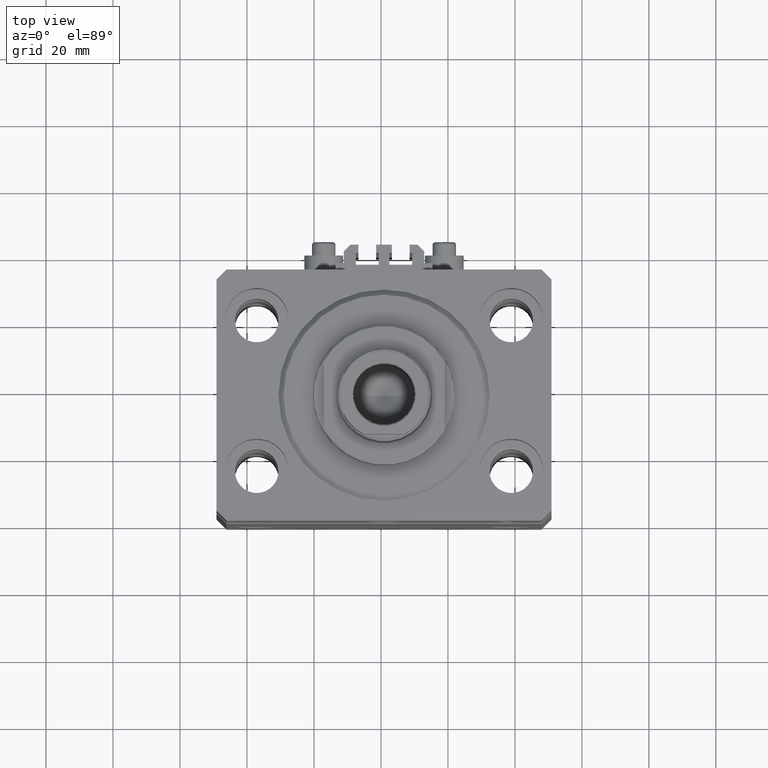
[diagram: clean part render]
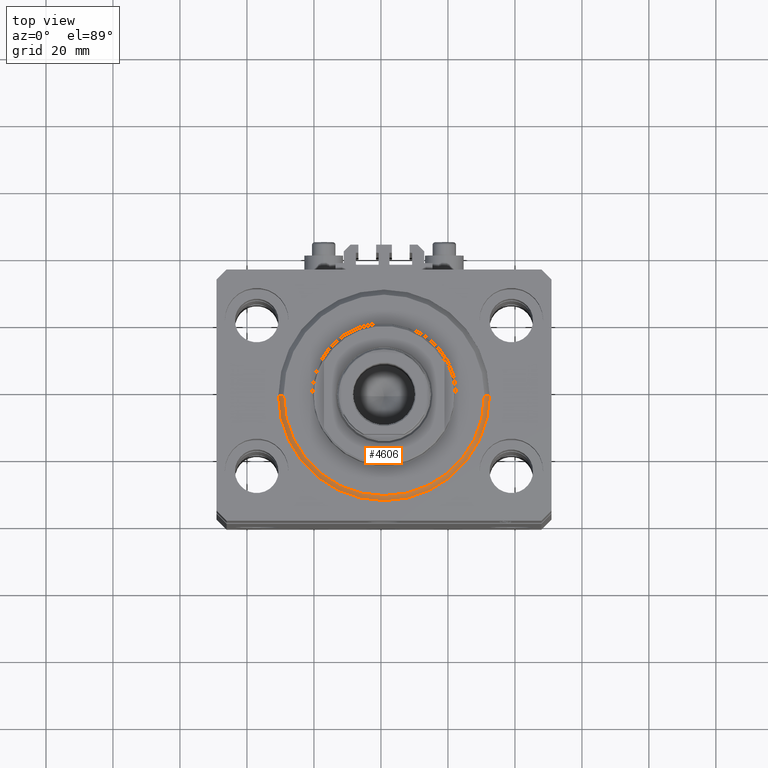
[diagram: same view with one face highlighted and labeled with its STEP entity id]
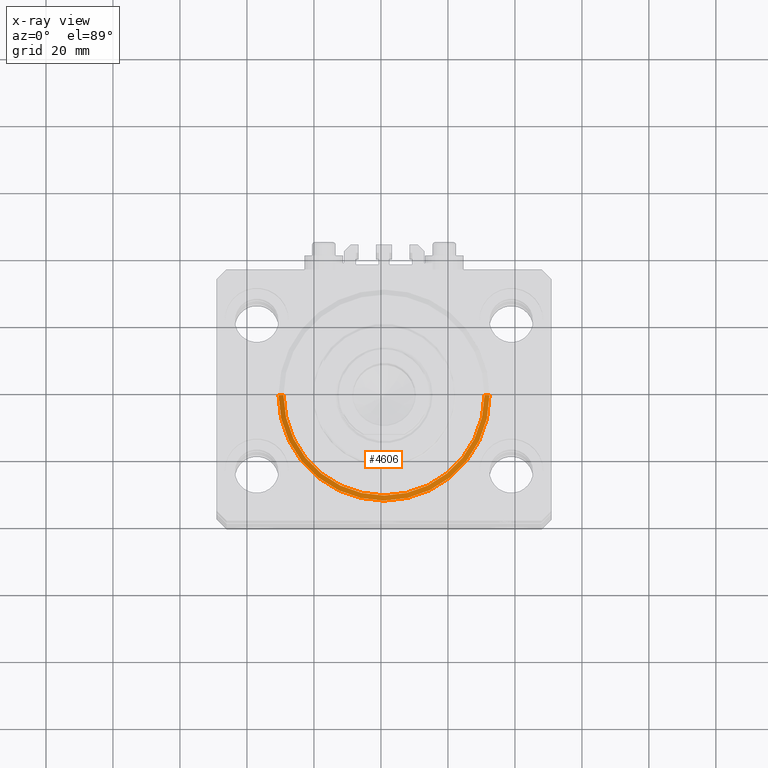
[diagram: x-ray of the same camera — body ghosted, the highlighted face saturated]
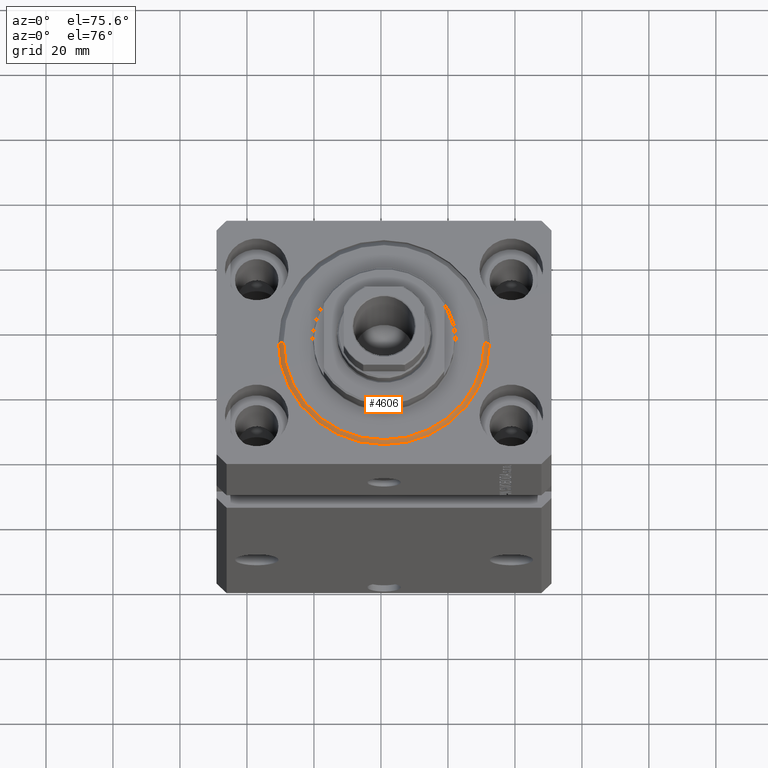
[diagram: same view with one face highlighted and labeled with its STEP entity id]
A machine part, top view. The second image highlights one B-rep face of the part: STEP entity #4606.
The next image is the same camera in x-ray: the body ghosted, the highlighted face saturated — about 0% of this face is hidden behind the body in this view.
A second angle (auxiliary view) of the same face is appended — the face is thin or edge-on in the first view.
In plain terms, the highlighted conical surface has half-angle 45 deg.
Its self-contained STEP definition (entity closure, byte-faithful):
#795 = CARTESIAN_POINT ( 'NONE',  ( -31.50000000000000000, 3.857637417314162689E-15, 1.500000000000001332 ) ) ;
#4195 = AXIS2_PLACEMENT_3D ( 'NONE', #5865, #20008, #27806 ) ;
#4606 = ADVANCED_FACE ( 'NONE', ( #46783 ), #25207, .T. ) ;
#5865 = CARTESIAN_POINT ( 'NONE',  ( 0.000000000000000000, 0.000000000000000000, 1.500000000000001332 ) ) ;
#5967 = VERTEX_POINT ( 'NONE', #22123 ) ;
#5998 = DIRECTION ( 'NONE',  ( 1.000000000000000000, 0.000000000000000000, 0.000000000000000000 ) ) ;
#7605 = DIRECTION ( 'NONE',  ( -0.7071067811865491270, 8.659560562354952580E-17, 0.7071067811865459074 ) ) ;
#8657 = AXIS2_PLACEMENT_3D ( 'NONE', #13309, #9657, #5998 ) ;
#9172 = LINE ( 'NONE', #24050, #14470 ) ;
#9657 = DIRECTION ( 'NONE',  ( -0.000000000000000000, -0.000000000000000000, 1.000000000000000000 ) ) ;
#10983 = VERTEX_POINT ( 'NONE', #23996 ) ;
#12424 = EDGE_CURVE ( 'NONE', #31742, #5967, #20569, .T. ) ;
#13150 = DIRECTION ( 'NONE',  ( 1.000000000000000000, 0.000000000000000000, 0.000000000000000000 ) ) ;
#13309 = CARTESIAN_POINT ( 'NONE',  ( 0.000000000000000000, 0.000000000000000000, 1.500000000000001332 ) ) ;
#14470 = VECTOR ( 'NONE', #35012, 1000.000000000000000 ) ;
#16136 = VERTEX_POINT ( 'NONE', #28205 ) ;
#16812 = CARTESIAN_POINT ( 'NONE',  ( 0.000000000000000000, 0.000000000000000000, 0.000000000000000000 ) ) ;
#19410 = EDGE_CURVE ( 'NONE', #5967, #16136, #26635, .T. ) ;
#19807 = AXIS2_PLACEMENT_3D ( 'NONE', #16812, #46524, #13150 ) ;
#19809 = EDGE_CURVE ( 'NONE', #31742, #10983, #9172, .T. ) ;
#20008 = DIRECTION ( 'NONE',  ( -0.000000000000000000, -0.000000000000000000, 1.000000000000000000 ) ) ;
#20569 = CIRCLE ( 'NONE', #19807, 29.99999999999999289 ) ;
#22123 = CARTESIAN_POINT ( 'NONE',  ( -29.99999999999999289, 3.765788907378110539E-15, 0.000000000000000000 ) ) ;
#23996 = CARTESIAN_POINT ( 'NONE',  ( 31.50000000000000000, 3.857637417314162689E-15, 1.500000000000001332 ) ) ;
#24050 = CARTESIAN_POINT ( 'NONE',  ( 31.50000000000000000, 0.000000000000000000, 1.500000000000001332 ) ) ;
#25207 = CONICAL_SURFACE ( 'NONE', #4195, 31.50000000000000000, 0.7853981633974506105 ) ;
#26495 = ORIENTED_EDGE ( 'NONE', *, *, #19410, .F. ) ;
#26635 = LINE ( 'NONE', #795, #44019 ) ;
#27806 = DIRECTION ( 'NONE',  ( 1.000000000000000000, 0.000000000000000000, 0.000000000000000000 ) ) ;
#28205 = CARTESIAN_POINT ( 'NONE',  ( -31.50000000000000000, 0.000000000000000000, 1.500000000000001332 ) ) ;
#31742 = VERTEX_POINT ( 'NONE', #36295 ) ;
#35012 = DIRECTION ( 'NONE',  ( 0.7071067811865491270, 0.000000000000000000, 0.7071067811865459074 ) ) ;
#35138 = CIRCLE ( 'NONE', #8657, 31.50000000000000000 ) ;
#35402 = ORIENTED_EDGE ( 'NONE', *, *, #41400, .F. ) ;
#36295 = CARTESIAN_POINT ( 'NONE',  ( 29.99999999999999289, 0.000000000000000000, 0.000000000000000000 ) ) ;
#40732 = ORIENTED_EDGE ( 'NONE', *, *, #19809, .T. ) ;
#41400 = EDGE_CURVE ( 'NONE', #16136, #10983, #35138, .T. ) ;
#41803 = ORIENTED_EDGE ( 'NONE', *, *, #12424, .F. ) ;
#44019 = VECTOR ( 'NONE', #7605, 1000.000000000000000 ) ;
#46524 = DIRECTION ( 'NONE',  ( -0.000000000000000000, -0.000000000000000000, -1.000000000000000000 ) ) ;
#46783 = FACE_OUTER_BOUND ( 'NONE', #48034, .T. ) ;
#48034 = EDGE_LOOP ( 'NONE', ( #26495, #41803, #40732, #35402 ) ) ;